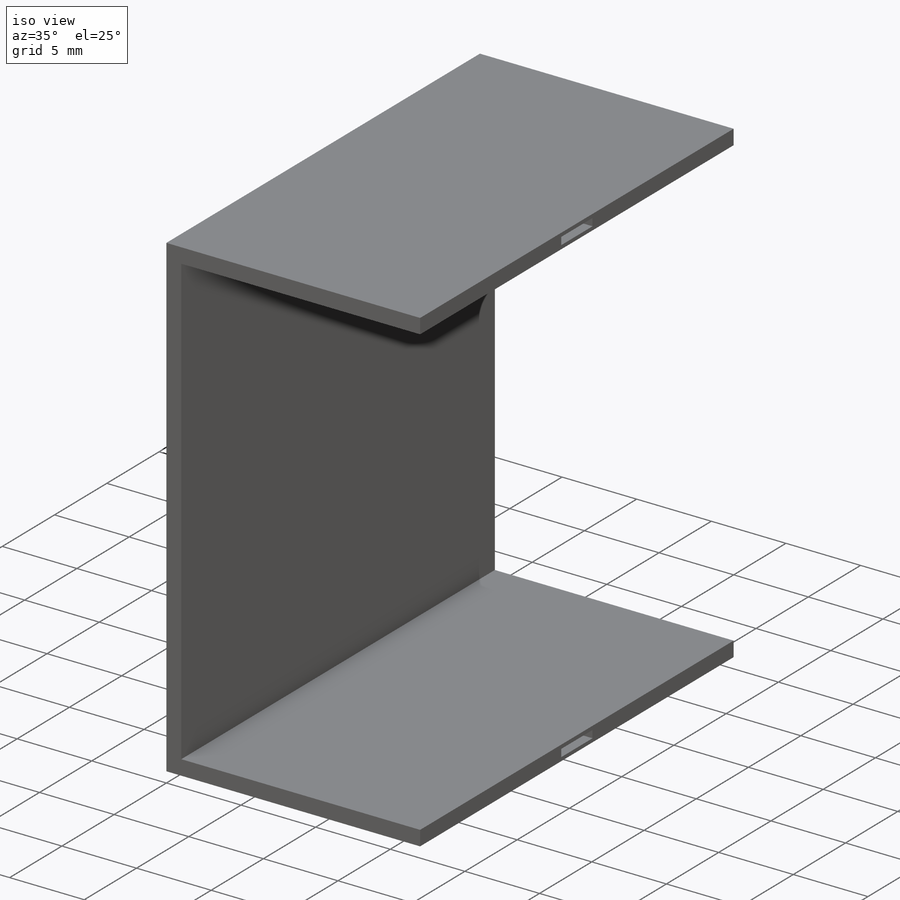
[diagram: iso view]
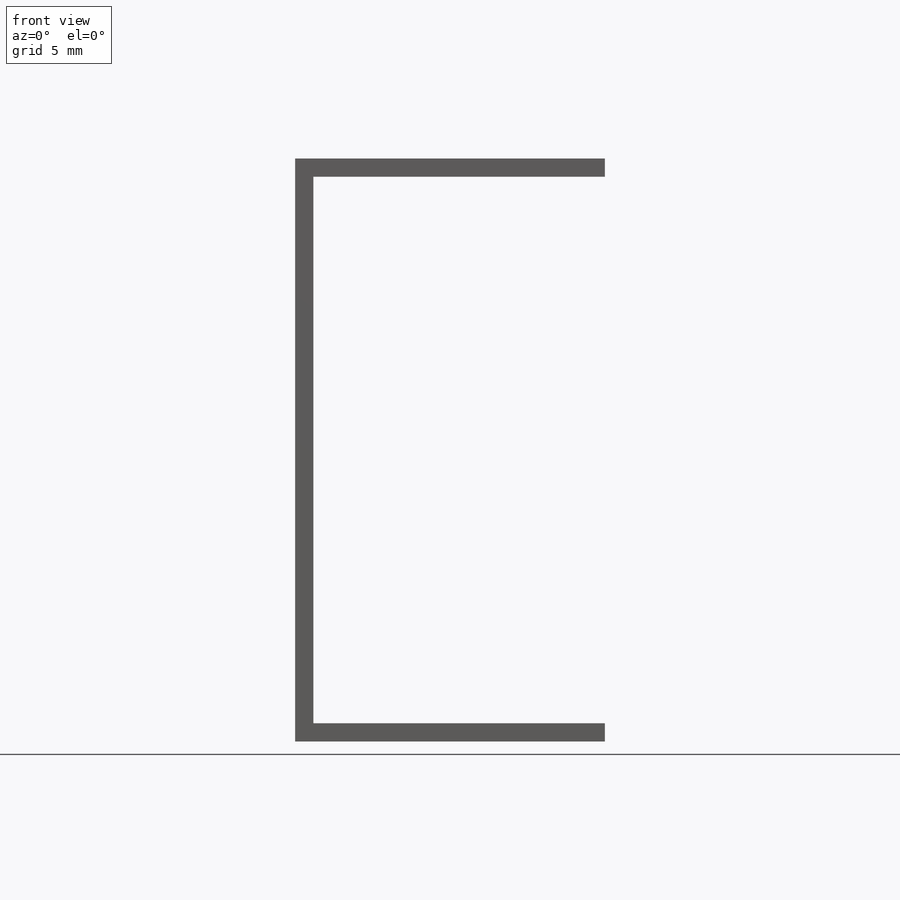
[diagram: front view]
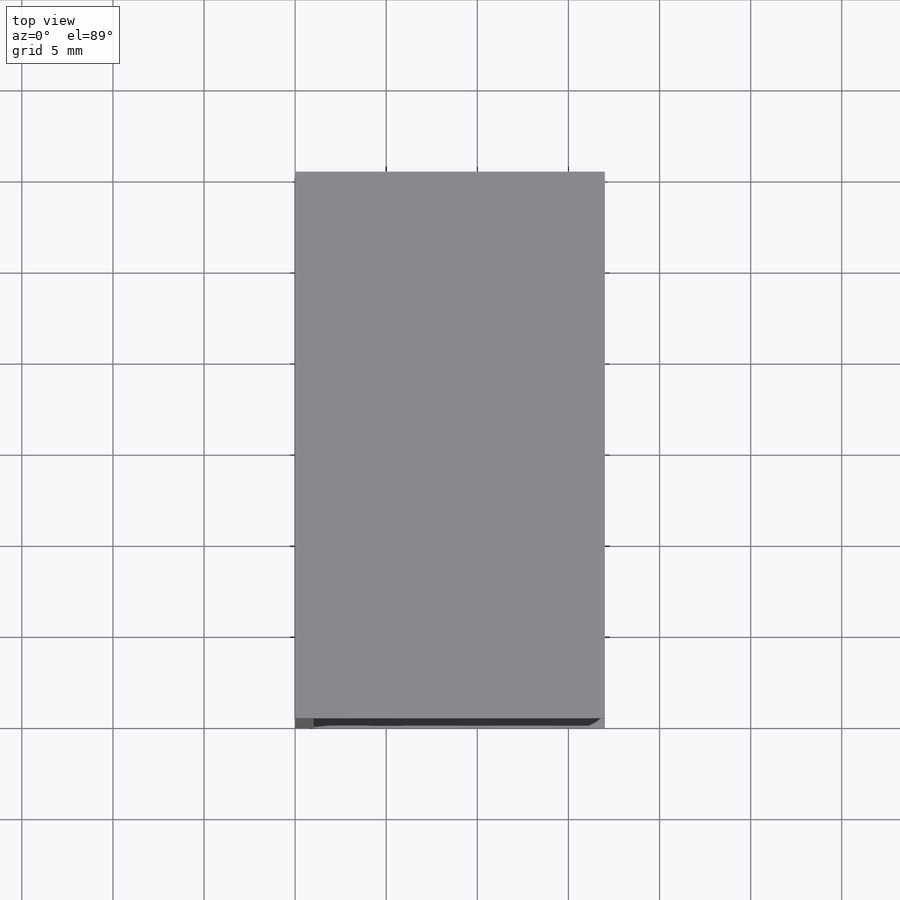
[diagram: top view]
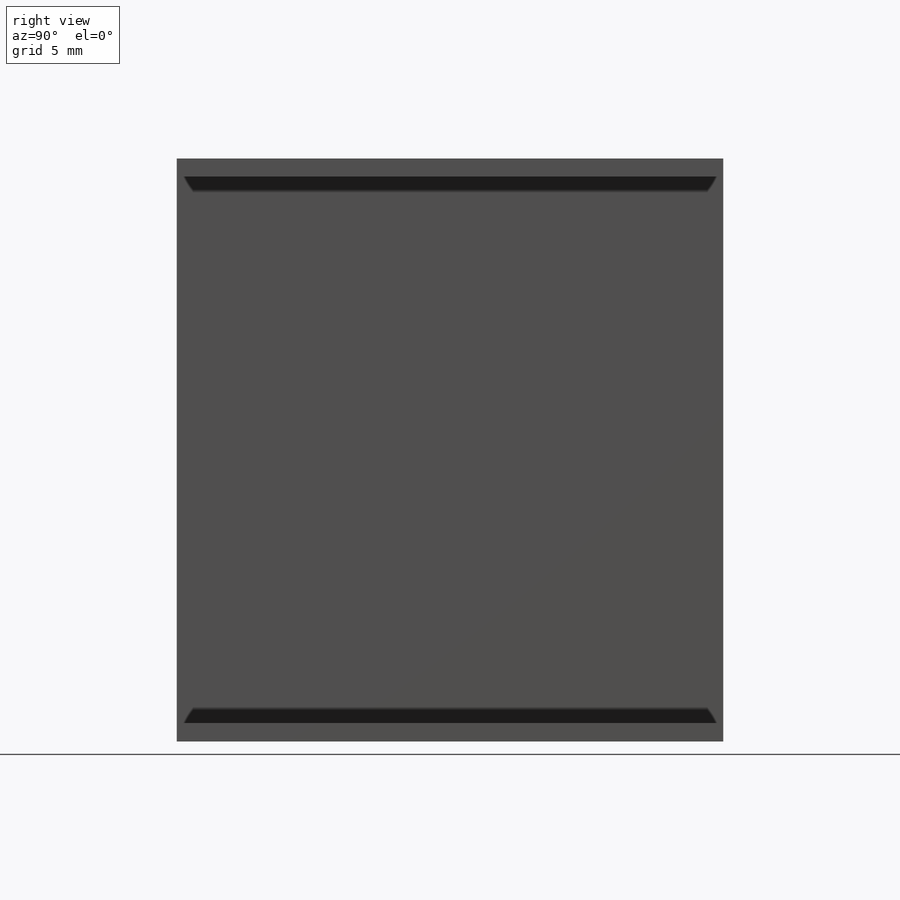
[diagram: right view]
SOLIDWORKS PART (.sldprt)
format: sldprt  version: not decoded by parser v0  size: 215,552 bytes
history: native  units: mm
features: sketch x4, cut_extrude x3, material x1, extrude x1 + 1 further entry (+12 scaffold rows collapsed)
feature tree (22):
  scaffold x12  (default folders/planes/origin — collapsed)
  material  "Material <not specified>"
  "Annotations"  RD1=3mm RD2=17mm RD3=17mm RD4=30mm
  sketch  "Sketch1"  dims[D1=1.0mm D2=1.0mm D3=1.0mm D4=30.0mm D5=17.0mm D6=17.0mm]
  extrude  "Boss-Extrude1"  Depth=30mm
  sketch  "Sketch2"  dims[D1=3.0mm D2=13.5mm D3=0.25mm D4=0.5mm D5=0.245mm]
  sketch  "Sketch3"  dims[D1=3.0mm D2=13.5mm D3=0.245mm D4=0.5mm]
  cut_extrude  "Cut-Extrude1"  Depth=1mm
  cut_extrude  "Cut-Extrude2"  Depth=1mm
  sketch  "Sketch5"  dims[D1=1.0mm D2=16.0mm D3=16.0mm]
  cut_extrude  "Cut-Extrude3"  Depth=0.5mm
decode coverage: 8 of 8 modeling features carry decoded parameters; 1 rows unclassified (native names shown)
note: suppression state not decoded; provenance and decode notes live in map.json
